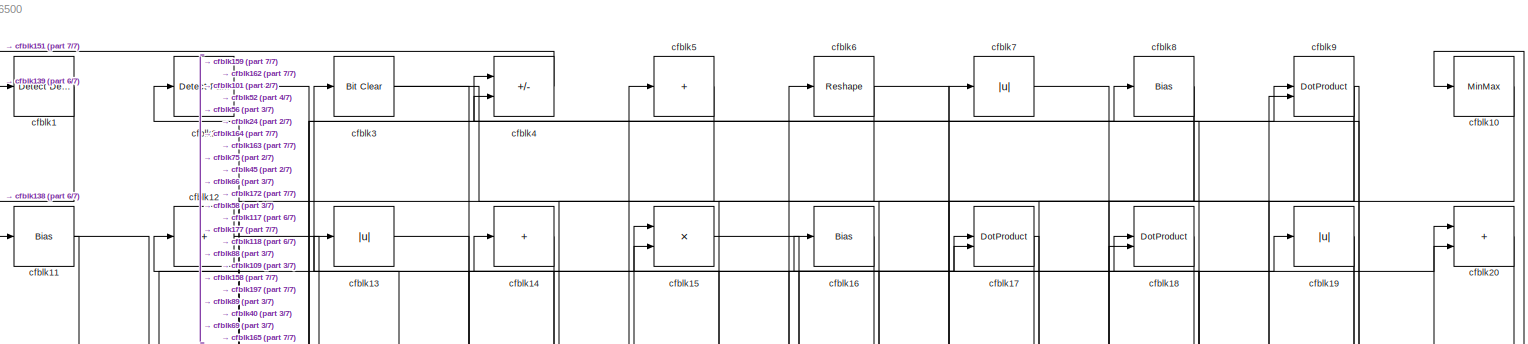
[diagram: root canvas - part 1/7, full width, top band]
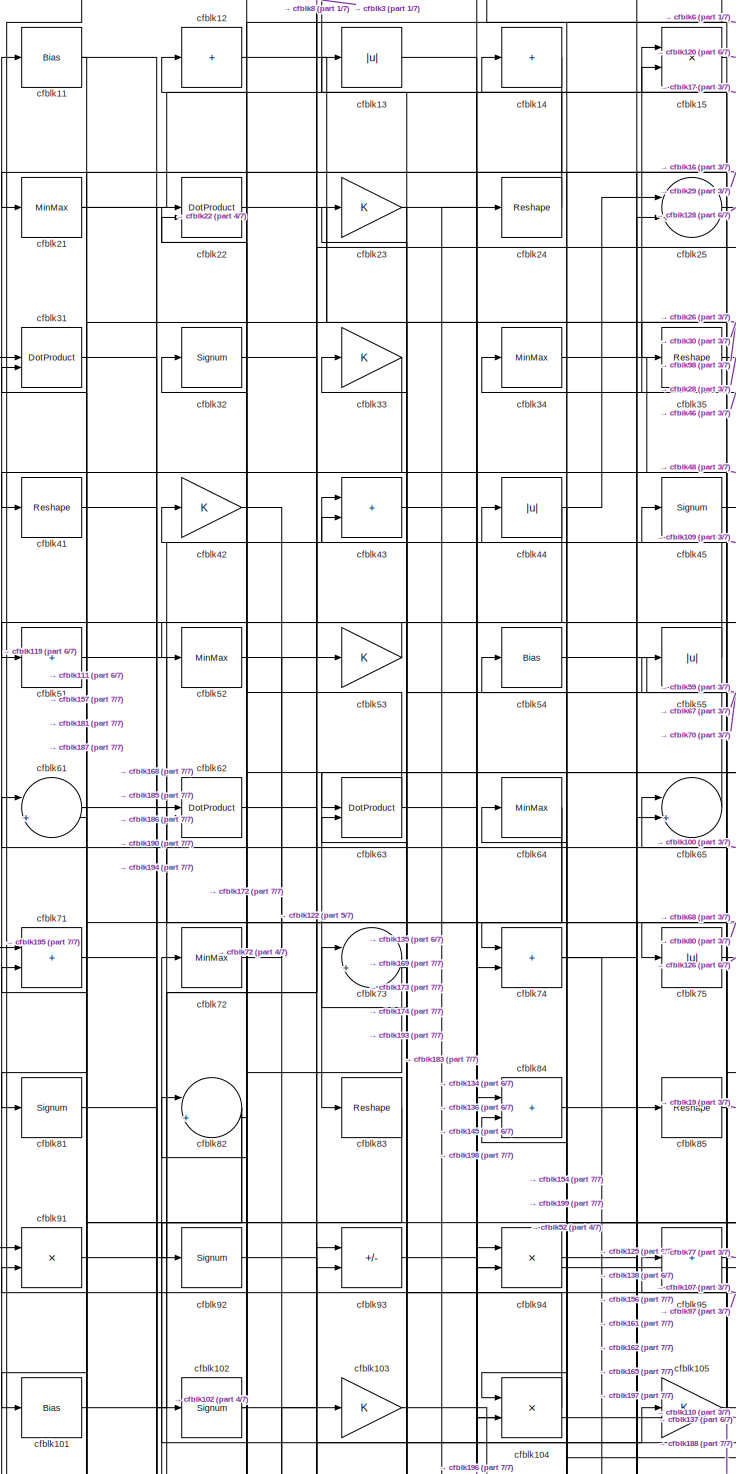
[diagram: root canvas - part 2/7, top left region]
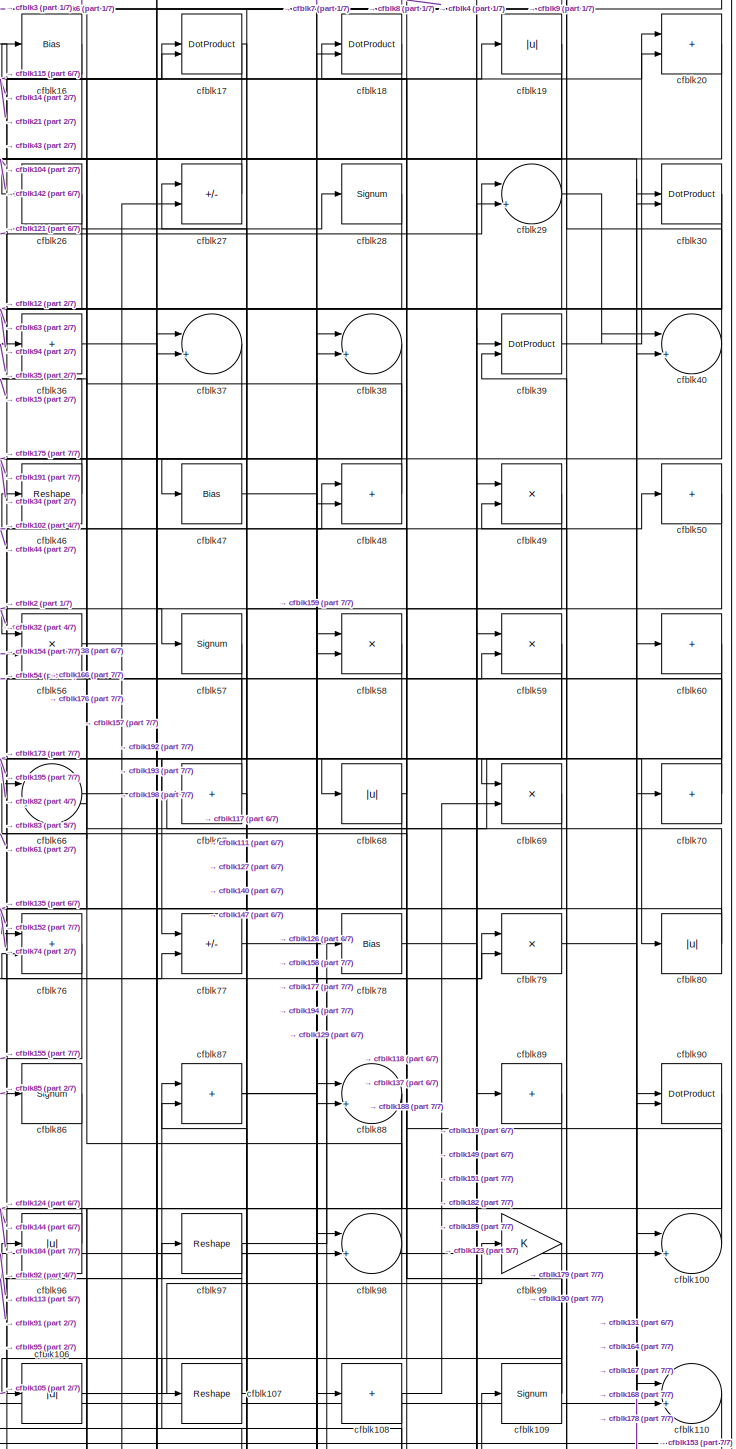
[diagram: root canvas - part 3/7, top right region]
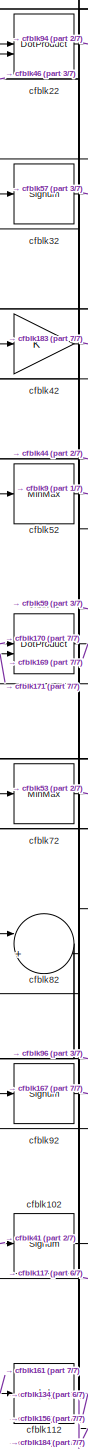
[diagram: root canvas - part 4/7, middle left region]
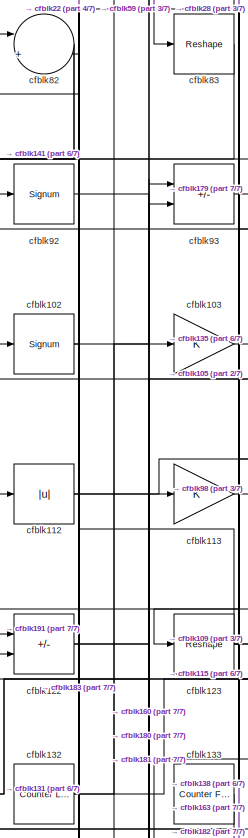
[diagram: root canvas - part 5/7, middle left region]
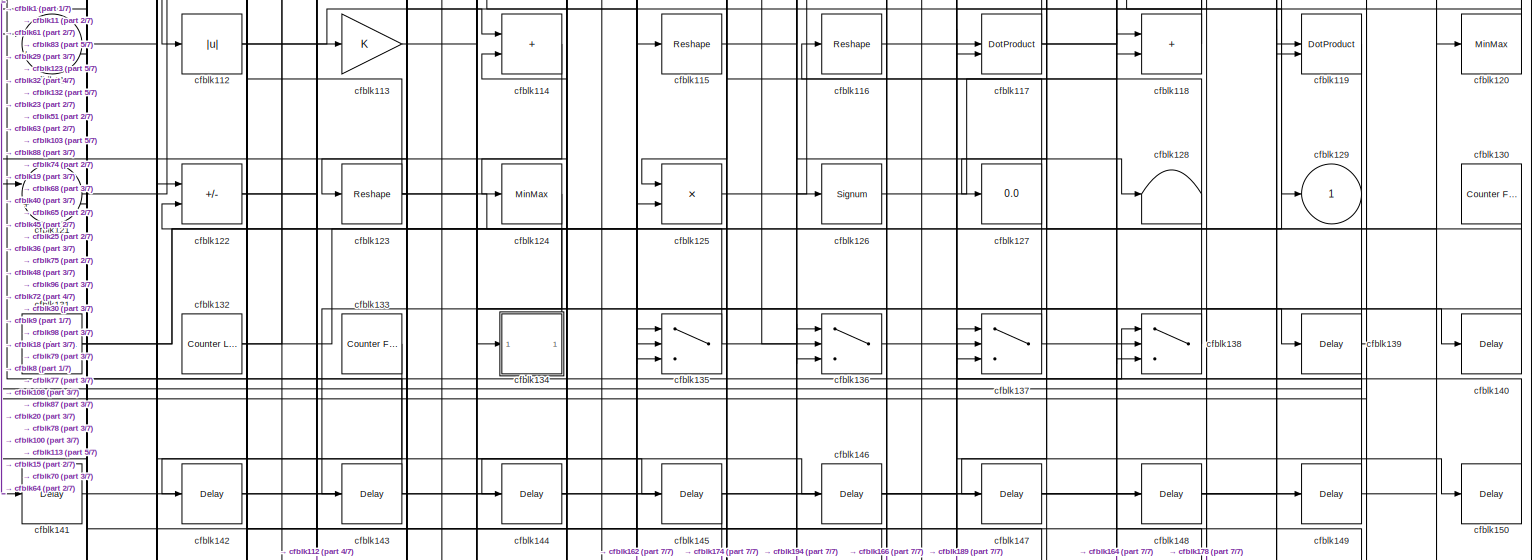
[diagram: root canvas - part 6/7, full width, middle band]
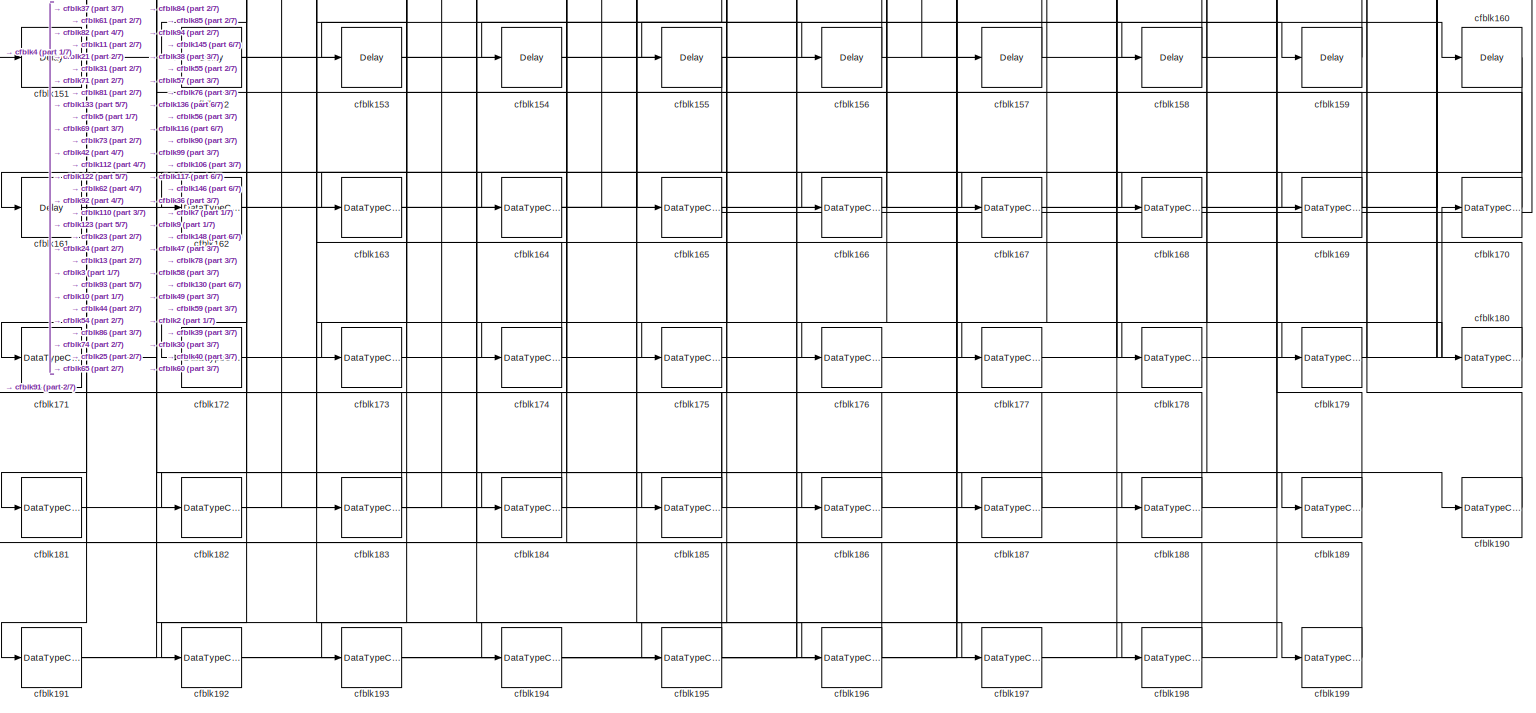
[diagram: root canvas - part 7/7, full width, bottom band]
MODEL slx_99d81be76500
KIND model
CONFIG AbsTol = auto
CONFIG EnableMultiTasking = off
CONFIG FixedStep = auto
CONFIG MaxStep = auto
CONFIG MinStep = auto
CONFIG RelTol = 1e-3
CONFIG SampleTimeConstraint = Unconstrained
CONFIG SolverName = VariableStepAuto
CONFIG StartTime = 0.0
CONFIG StopTime = 10.0
BLOCK [Reference] cfblk1  REF=simulink/Logic and Bit
Operations/Detect
Decrease
  LibrarySourceBlock = hdlsllib/Logic and Bit\nOperations/Detect\nDecrease
  SourceBlock = simulink/Logic and Bit\nOperations/Detect\nDecrease
  SourceType = Detect Decrease
BLOCK [MinMax] cfblk10
BLOCK [Sum] cfblk100
  Inputs = |++
BLOCK [Bias] cfblk101
  Bias = 0.0
  SaturateOnIntegerOverflow = off
BLOCK [Signum] cfblk102
BLOCK [Gain] cfblk103
BLOCK [Product] cfblk104
  Inputs = */
  RndMeth = Zero
  SaturateOnIntegerOverflow = on
BLOCK [Gain] cfblk105
BLOCK [Abs] cfblk106
  SaturateOnIntegerOverflow = off
BLOCK [Reshape] cfblk107
BLOCK [Sum] cfblk108
  IconShape = rectangular
  Inputs = +
BLOCK [Signum] cfblk109
BLOCK [Bias] cfblk11
  Bias = 0.0
  SaturateOnIntegerOverflow = off
BLOCK [Sum] cfblk110
  Inputs = |++
BLOCK [Sum] cfblk111
  Inputs = |++
BLOCK [Abs] cfblk112
  SaturateOnIntegerOverflow = off
BLOCK [Gain] cfblk113
BLOCK [Sum] cfblk114
  IconShape = rectangular
BLOCK [Reshape] cfblk115
BLOCK [Reshape] cfblk116
BLOCK [DotProduct] cfblk117
  OutDataTypeStr = Inherit: Inherit via internal rule
BLOCK [Sum] cfblk118
  IconShape = rectangular
BLOCK [DotProduct] cfblk119
  OutDataTypeStr = Inherit: Inherit via internal rule
BLOCK [Sum] cfblk12
  IconShape = rectangular
  Inputs = +
BLOCK [MinMax] cfblk120
BLOCK [Sum] cfblk121
  Inputs = |++
BLOCK [Sum] cfblk122
  IconShape = rectangular
  Inputs = +-
BLOCK [Reshape] cfblk123
BLOCK [MinMax] cfblk124
BLOCK [Product] cfblk125
  Inputs = */
  RndMeth = Zero
  SaturateOnIntegerOverflow = on
BLOCK [Signum] cfblk126
BLOCK [Display] cfblk127
  Decimation = 1
BLOCK [Terminator] cfblk128
BLOCK [Outport] cfblk129
  VectorParamsAs1DForOutWhenUnconnected = off
BLOCK [Abs] cfblk13
  SaturateOnIntegerOverflow = off
BLOCK [Reference] cfblk130  REF=hdlsllib/Sources/Counter
Free-Running
  SourceBlock = hdlsllib/Sources/Counter\nFree-Running
  SourceType = Counter Free-Running
BLOCK [Reference] cfblk131  REF=hdlsllib/Sources/Counter
Limited
  SourceBlock = hdlsllib/Sources/Counter\nLimited
  SourceType = Counter Limited
BLOCK [Reference] cfblk132  REF=hdlsllib/Sources/Counter
Limited
  SourceBlock = hdlsllib/Sources/Counter\nLimited
  SourceType = Counter Limited
BLOCK [Reference] cfblk133  REF=hdlsllib/Sources/Counter
Free-Running
  SourceBlock = hdlsllib/Sources/Counter\nFree-Running
  SourceType = Counter Free-Running
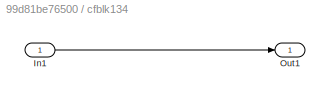
BLOCK [SubSystem] cfblk134
  LibrarySourceBlock = hdlsllib/Ports &\nSubsystems/Subsystem
BLOCK [Inport] cfblk134/In1
BLOCK [Outport] cfblk134/Out1
BLOCK [Switch] cfblk135
  InputSameDT = off
  SaturateOnIntegerOverflow = off
BLOCK [Switch] cfblk136
  InputSameDT = off
  SaturateOnIntegerOverflow = off
BLOCK [Switch] cfblk137
  InputSameDT = off
  SaturateOnIntegerOverflow = off
BLOCK [Switch] cfblk138
  InputSameDT = off
  SaturateOnIntegerOverflow = off
BLOCK [Delay] cfblk139
  InputPortMap = u0
  SampleTime = 1
BLOCK [Sum] cfblk14
  IconShape = rectangular
  Inputs = +
BLOCK [Delay] cfblk140
  InputPortMap = u0
  SampleTime = 1
BLOCK [Delay] cfblk141
  InputPortMap = u0
  SampleTime = 1
BLOCK [Delay] cfblk142
  InputPortMap = u0
  SampleTime = 1
BLOCK [Delay] cfblk143
  InputPortMap = u0
  SampleTime = 1
BLOCK [Delay] cfblk144
  InputPortMap = u0
  SampleTime = 1
BLOCK [Delay] cfblk145
  InputPortMap = u0
  SampleTime = 1
BLOCK [Delay] cfblk146
  InputPortMap = u0
  SampleTime = 1
BLOCK [Delay] cfblk147
  InputPortMap = u0
  SampleTime = 1
BLOCK [Delay] cfblk148
  InputPortMap = u0
  SampleTime = 1
BLOCK [Delay] cfblk149
  InputPortMap = u0
  SampleTime = 1
BLOCK [Product] cfblk15
  Inputs = */
  RndMeth = Zero
  SaturateOnIntegerOverflow = on
BLOCK [Delay] cfblk150
  InputPortMap = u0
  SampleTime = 1
BLOCK [Delay] cfblk151
  InputPortMap = u0
  SampleTime = 1
BLOCK [Delay] cfblk152
  InputPortMap = u0
  SampleTime = 1
BLOCK [Delay] cfblk153
  InputPortMap = u0
  SampleTime = 1
BLOCK [Delay] cfblk154
  InputPortMap = u0
  SampleTime = 1
BLOCK [Delay] cfblk155
  InputPortMap = u0
  SampleTime = 1
BLOCK [Delay] cfblk156
  InputPortMap = u0
  SampleTime = 1
BLOCK [Delay] cfblk157
  InputPortMap = u0
  SampleTime = 1
BLOCK [Delay] cfblk158
  InputPortMap = u0
  SampleTime = 1
BLOCK [Delay] cfblk159
  InputPortMap = u0
  SampleTime = 1
BLOCK [Bias] cfblk16
  Bias = 0.0
  SaturateOnIntegerOverflow = off
BLOCK [Delay] cfblk160
  InputPortMap = u0
  SampleTime = 1
BLOCK [Delay] cfblk161
  InputPortMap = u0
  SampleTime = 1
BLOCK [DataTypeConversion] cfblk162
  RndMeth = Floor
  SaturateOnIntegerOverflow = off
BLOCK [DataTypeConversion] cfblk163
  OutDataTypeStr = uint8
  RndMeth = Floor
  SaturateOnIntegerOverflow = off
BLOCK [DataTypeConversion] cfblk164
  RndMeth = Floor
  SaturateOnIntegerOverflow = off
BLOCK [DataTypeConversion] cfblk165
  OutDataTypeStr = uint8
  RndMeth = Floor
  SaturateOnIntegerOverflow = off
BLOCK [DataTypeConversion] cfblk166
  OutDataTypeStr = uint8
  RndMeth = Floor
  SaturateOnIntegerOverflow = off
BLOCK [DataTypeConversion] cfblk167
  OutDataTypeStr = uint8
  RndMeth = Floor
  SaturateOnIntegerOverflow = off
BLOCK [DataTypeConversion] cfblk168
  OutDataTypeStr = uint8
  RndMeth = Floor
  SaturateOnIntegerOverflow = off
BLOCK [DataTypeConversion] cfblk169
  OutDataTypeStr = uint8
  RndMeth = Floor
  SaturateOnIntegerOverflow = off
BLOCK [DotProduct] cfblk17
  OutDataTypeStr = Inherit: Inherit via internal rule
BLOCK [DataTypeConversion] cfblk170
  OutDataTypeStr = uint8
  RndMeth = Floor
  SaturateOnIntegerOverflow = off
BLOCK [DataTypeConversion] cfblk171
  OutDataTypeStr = uint8
  RndMeth = Floor
  SaturateOnIntegerOverflow = off
BLOCK [DataTypeConversion] cfblk172
  RndMeth = Floor
  SaturateOnIntegerOverflow = off
BLOCK [DataTypeConversion] cfblk173
  OutDataTypeStr = uint8
  RndMeth = Floor
  SaturateOnIntegerOverflow = off
BLOCK [DataTypeConversion] cfblk174
  OutDataTypeStr = uint8
  RndMeth = Floor
  SaturateOnIntegerOverflow = off
BLOCK [DataTypeConversion] cfblk175
  OutDataTypeStr = uint8
  RndMeth = Floor
  SaturateOnIntegerOverflow = off
BLOCK [DataTypeConversion] cfblk176
  OutDataTypeStr = uint8
  RndMeth = Floor
  SaturateOnIntegerOverflow = off
BLOCK [DataTypeConversion] cfblk177
  OutDataTypeStr = uint8
  RndMeth = Floor
  SaturateOnIntegerOverflow = off
BLOCK [DataTypeConversion] cfblk178
  RndMeth = Floor
  SaturateOnIntegerOverflow = off
BLOCK [DataTypeConversion] cfblk179
  OutDataTypeStr = uint8
  RndMeth = Floor
  SaturateOnIntegerOverflow = off
BLOCK [DotProduct] cfblk18
  OutDataTypeStr = Inherit: Inherit via internal rule
BLOCK [DataTypeConversion] cfblk180
  OutDataTypeStr = uint8
  RndMeth = Floor
  SaturateOnIntegerOverflow = off
BLOCK [DataTypeConversion] cfblk181
  OutDataTypeStr = uint8
  RndMeth = Floor
  SaturateOnIntegerOverflow = off
BLOCK [DataTypeConversion] cfblk182
  OutDataTypeStr = uint8
  RndMeth = Floor
  SaturateOnIntegerOverflow = off
BLOCK [DataTypeConversion] cfblk183
  RndMeth = Floor
  SaturateOnIntegerOverflow = off
BLOCK [DataTypeConversion] cfblk184
  OutDataTypeStr = uint8
  RndMeth = Floor
  SaturateOnIntegerOverflow = off
BLOCK [DataTypeConversion] cfblk185
  RndMeth = Floor
  SaturateOnIntegerOverflow = off
BLOCK [DataTypeConversion] cfblk186
  OutDataTypeStr = uint8
  RndMeth = Floor
  SaturateOnIntegerOverflow = off
BLOCK [DataTypeConversion] cfblk187
  OutDataTypeStr = uint8
  RndMeth = Floor
  SaturateOnIntegerOverflow = off
BLOCK [DataTypeConversion] cfblk188
  OutDataTypeStr = uint8
  RndMeth = Floor
  SaturateOnIntegerOverflow = off
BLOCK [DataTypeConversion] cfblk189
  OutDataTypeStr = uint8
  RndMeth = Floor
  SaturateOnIntegerOverflow = off
BLOCK [Abs] cfblk19
  SaturateOnIntegerOverflow = off
BLOCK [DataTypeConversion] cfblk190
  OutDataTypeStr = uint8
  RndMeth = Floor
  SaturateOnIntegerOverflow = off
BLOCK [DataTypeConversion] cfblk191
  RndMeth = Floor
  SaturateOnIntegerOverflow = off
BLOCK [DataTypeConversion] cfblk192
  OutDataTypeStr = uint8
  RndMeth = Floor
  SaturateOnIntegerOverflow = off
BLOCK [DataTypeConversion] cfblk193
  OutDataTypeStr = uint8
  RndMeth = Floor
  SaturateOnIntegerOverflow = off
BLOCK [DataTypeConversion] cfblk194
  RndMeth = Floor
  SaturateOnIntegerOverflow = off
BLOCK [DataTypeConversion] cfblk195
  OutDataTypeStr = uint8
  RndMeth = Floor
  SaturateOnIntegerOverflow = off
BLOCK [DataTypeConversion] cfblk196
  OutDataTypeStr = uint8
  RndMeth = Floor
  SaturateOnIntegerOverflow = off
BLOCK [DataTypeConversion] cfblk197
  OutDataTypeStr = uint8
  RndMeth = Floor
  SaturateOnIntegerOverflow = off
BLOCK [DataTypeConversion] cfblk198
  OutDataTypeStr = uint8
  RndMeth = Floor
  SaturateOnIntegerOverflow = off
BLOCK [DataTypeConversion] cfblk199
  OutDataTypeStr = uint8
  RndMeth = Floor
  SaturateOnIntegerOverflow = off
BLOCK [Reference] cfblk2  REF=hdlsllib/Logic and Bit
Operations/Detect Fall
Negative
  SourceBlock = hdlsllib/Logic and Bit\nOperations/Detect Fall\nNegative
  SourceType = Detect Fall Negative
BLOCK [Sum] cfblk20
  IconShape = rectangular
BLOCK [MinMax] cfblk21
BLOCK [DotProduct] cfblk22
  OutDataTypeStr = Inherit: Inherit via internal rule
BLOCK [Gain] cfblk23
BLOCK [Reshape] cfblk24
BLOCK [Sum] cfblk25
  Inputs = |++
BLOCK [Sum] cfblk26
  IconShape = rectangular
  Inputs = +
BLOCK [Sum] cfblk27
  IconShape = rectangular
  Inputs = +-
BLOCK [Signum] cfblk28
BLOCK [Sum] cfblk29
  Inputs = |++
BLOCK [Reference] cfblk3  REF=simulink/Logic and Bit
Operations/Bit Clear
  LibrarySourceBlock = hdlsllib/Logic and Bit\nOperations/Bit Clear
  SourceBlock = simulink/Logic and Bit\nOperations/Bit Clear
  SourceType = Bit Clear
BLOCK [DotProduct] cfblk30
  OutDataTypeStr = Inherit: Inherit via internal rule
BLOCK [DotProduct] cfblk31
  OutDataTypeStr = Inherit: Inherit via internal rule
BLOCK [Signum] cfblk32
BLOCK [Gain] cfblk33
BLOCK [MinMax] cfblk34
BLOCK [Reshape] cfblk35
BLOCK [Sum] cfblk36
  IconShape = rectangular
  Inputs = +
BLOCK [Sum] cfblk37
  Inputs = |++
BLOCK [Sum] cfblk38
  Inputs = |++
BLOCK [DotProduct] cfblk39
  OutDataTypeStr = Inherit: Inherit via internal rule
BLOCK [Sum] cfblk4
  IconShape = rectangular
  Inputs = +-
BLOCK [Sum] cfblk40
  Inputs = |++
BLOCK [Reshape] cfblk41
BLOCK [Gain] cfblk42
BLOCK [Sum] cfblk43
  IconShape = rectangular
BLOCK [Abs] cfblk44
  SaturateOnIntegerOverflow = off
BLOCK [Signum] cfblk45
BLOCK [Reshape] cfblk46
BLOCK [Bias] cfblk47
  Bias = 0.0
  SaturateOnIntegerOverflow = off
BLOCK [Sum] cfblk48
  IconShape = rectangular
BLOCK [Product] cfblk49
  Inputs = */
  RndMeth = Zero
  SaturateOnIntegerOverflow = on
BLOCK [Sum] cfblk5
  IconShape = rectangular
  Inputs = +
BLOCK [Sum] cfblk50
  IconShape = rectangular
  Inputs = +
BLOCK [Sum] cfblk51
  IconShape = rectangular
  Inputs = +
BLOCK [MinMax] cfblk52
BLOCK [Gain] cfblk53
BLOCK [Bias] cfblk54
  Bias = 0.0
  SaturateOnIntegerOverflow = off
BLOCK [Abs] cfblk55
  SaturateOnIntegerOverflow = off
BLOCK [Product] cfblk56
  Inputs = */
  RndMeth = Zero
  SaturateOnIntegerOverflow = on
BLOCK [Signum] cfblk57
BLOCK [Product] cfblk58
  Inputs = */
  RndMeth = Zero
  SaturateOnIntegerOverflow = on
BLOCK [Product] cfblk59
  Inputs = */
  RndMeth = Zero
  SaturateOnIntegerOverflow = on
BLOCK [Reshape] cfblk6
BLOCK [Sum] cfblk60
  IconShape = rectangular
  Inputs = +
BLOCK [Sum] cfblk61
  Inputs = |++
BLOCK [DotProduct] cfblk62
  OutDataTypeStr = Inherit: Inherit via internal rule
BLOCK [DotProduct] cfblk63
  OutDataTypeStr = Inherit: Inherit via internal rule
BLOCK [MinMax] cfblk64
BLOCK [Sum] cfblk65
  Inputs = |++
BLOCK [Sum] cfblk66
  Inputs = |++
BLOCK [Sum] cfblk67
  IconShape = rectangular
  Inputs = +
BLOCK [Abs] cfblk68
  SaturateOnIntegerOverflow = off
BLOCK [Product] cfblk69
  Inputs = */
  RndMeth = Zero
  SaturateOnIntegerOverflow = on
BLOCK [Abs] cfblk7
  SaturateOnIntegerOverflow = off
BLOCK [Sum] cfblk70
  IconShape = rectangular
  Inputs = +
BLOCK [Sum] cfblk71
  IconShape = rectangular
BLOCK [MinMax] cfblk72
BLOCK [Sum] cfblk73
  Inputs = |++
BLOCK [Sum] cfblk74
  IconShape = rectangular
BLOCK [Abs] cfblk75
  SaturateOnIntegerOverflow = off
BLOCK [Sum] cfblk76
  IconShape = rectangular
BLOCK [Sum] cfblk77
  IconShape = rectangular
  Inputs = +-
BLOCK [Bias] cfblk78
  Bias = 0.0
  SaturateOnIntegerOverflow = off
BLOCK [Product] cfblk79
  Inputs = */
  RndMeth = Zero
  SaturateOnIntegerOverflow = on
BLOCK [Bias] cfblk8
  Bias = 0.0
  SaturateOnIntegerOverflow = off
BLOCK [Abs] cfblk80
  SaturateOnIntegerOverflow = off
BLOCK [Signum] cfblk81
BLOCK [Sum] cfblk82
  Inputs = |++
BLOCK [Reshape] cfblk83
BLOCK [Sum] cfblk84
  IconShape = rectangular
BLOCK [Reshape] cfblk85
BLOCK [Signum] cfblk86
BLOCK [Sum] cfblk87
  IconShape = rectangular
BLOCK [Sum] cfblk88
  Inputs = |++
BLOCK [Sum] cfblk89
  IconShape = rectangular
  Inputs = +
BLOCK [DotProduct] cfblk9
  OutDataTypeStr = Inherit: Inherit via internal rule
BLOCK [DotProduct] cfblk90
  OutDataTypeStr = Inherit: Inherit via internal rule
BLOCK [Product] cfblk91
  Inputs = */
  RndMeth = Zero
  SaturateOnIntegerOverflow = on
BLOCK [Signum] cfblk92
BLOCK [Sum] cfblk93
  IconShape = rectangular
  Inputs = +-
BLOCK [Product] cfblk94
  Inputs = */
  RndMeth = Zero
  SaturateOnIntegerOverflow = on
BLOCK [Sum] cfblk95
  IconShape = rectangular
  Inputs = +
BLOCK [Abs] cfblk96
  SaturateOnIntegerOverflow = off
BLOCK [Reshape] cfblk97
BLOCK [Sum] cfblk98
  Inputs = |++
BLOCK [Gain] cfblk99
LINE cfblk100:1 -> cfblk61:1
LINE cfblk101:1 -> cfblk8:1
NET cfblk102:1 -> cfblk22:2, cfblk46:1
LINE cfblk103:1 -> cfblk135:1
LINE cfblk104:1 -> cfblk13:1
LINE cfblk105:1 -> cfblk97:1
NET cfblk106:1 -> cfblk157:1, cfblk27:2, cfblk99:1
NET cfblk107:1 -> cfblk27:1, cfblk95:1
NET cfblk108:1 -> cfblk137:3, cfblk69:2
NET cfblk109:1 -> cfblk44:1, cfblk4:2, cfblk76:2
LINE cfblk10:1 -> cfblk164:1
LINE cfblk110:1 -> cfblk153:1
LINE cfblk111:1 -> cfblk146:1
NET cfblk112:1 -> cfblk114:1, cfblk199:1
LINE cfblk113:1 -> cfblk98:2
LINE cfblk114:1 -> cfblk121:1
LINE cfblk115:1 -> cfblk20:2
LINE cfblk116:1 -> cfblk139:1
NET cfblk117:1 -> cfblk72:1, cfblk79:2, cfblk88:2
LINE cfblk118:1 -> cfblk87:1
LINE cfblk119:1 -> cfblk11:1
NET cfblk11:1 -> cfblk101:1, cfblk168:1
LINE cfblk120:1 -> cfblk64:1
LINE cfblk121:1 -> cfblk29:1
NET cfblk122:1 -> cfblk105:1, cfblk160:1
NET cfblk123:1 -> cfblk109:1, cfblk138:3, cfblk163:1, cfblk22:1
LINE cfblk124:1 -> cfblk143:1
LINE cfblk125:1 -> cfblk48:1
LINE cfblk126:1 -> cfblk18:2
LINE cfblk12:1 -> cfblk98:1
LINE cfblk130:1 -> cfblk178:1
NET cfblk131:1 -> cfblk113:1, cfblk70:1
NET cfblk132:1 -> cfblk103:1, cfblk115:1
LINE cfblk133:1 -> cfblk182:1
LINE cfblk134/In1:1 -> cfblk134/Out1:1
LINE cfblk134:1 -> cfblk32:1
NET cfblk135:1 -> cfblk36:1, cfblk63:2
LINE cfblk136:1 -> cfblk150:1
NET cfblk137:1 -> cfblk140:1, cfblk65:1
LINE cfblk138:1 -> cfblk96:1
LINE cfblk139:1 -> cfblk1:1
LINE cfblk13:1 -> cfblk196:1
LINE cfblk140:1 -> cfblk87:2
LINE cfblk141:1 -> cfblk118:1
LINE cfblk142:1 -> cfblk29:2
LINE cfblk143:1 -> cfblk121:2
LINE cfblk144:1 -> cfblk114:2
LINE cfblk145:1 -> cfblk174:1
LINE cfblk146:1 -> cfblk189:1
LINE cfblk147:1 -> cfblk100:1
LINE cfblk148:1 -> cfblk119:1
LINE cfblk149:1 -> cfblk137:2
LINE cfblk14:1 -> cfblk41:1
LINE cfblk150:1 -> cfblk137:1
LINE cfblk151:1 -> cfblk59:1
LINE cfblk152:1 -> cfblk180:1
LINE cfblk153:1 -> cfblk187:1
LINE cfblk154:1 -> cfblk56:2
LINE cfblk155:1 -> cfblk192:1
LINE cfblk156:1 -> cfblk82:1
LINE cfblk157:1 -> cfblk61:2
LINE cfblk158:1 -> cfblk58:1
LINE cfblk159:1 -> cfblk2:1
LINE cfblk15:1 -> cfblk120:1
LINE cfblk160:1 -> cfblk171:1
LINE cfblk161:1 -> cfblk65:2
NET cfblk162:1 -> cfblk117:1, cfblk85:1
LINE cfblk163:1 -> cfblk5:1
NET cfblk164:1 -> cfblk148:1, cfblk40:2
LINE cfblk165:1 -> cfblk10:1
LINE cfblk166:1 -> cfblk116:1
LINE cfblk167:1 -> cfblk90:1
LINE cfblk168:1 -> cfblk90:2
LINE cfblk169:1 -> cfblk23:1
LINE cfblk16:1 -> cfblk104:1
LINE cfblk170:1 -> cfblk62:1
LINE cfblk171:1 -> cfblk62:2
NET cfblk172:1 -> cfblk170:1, cfblk7:1
LINE cfblk173:1 -> cfblk73:1
LINE cfblk174:1 -> cfblk73:2
LINE cfblk175:1 -> cfblk30:2
LINE cfblk176:1 -> cfblk38:1
LINE cfblk177:1 -> cfblk38:2
NET cfblk178:1 -> cfblk30:1, cfblk60:1
LINE cfblk179:1 -> cfblk39:2
NET cfblk17:1 -> cfblk47:1, cfblk76:1
LINE cfblk180:1 -> cfblk93:1
LINE cfblk181:1 -> cfblk93:2
LINE cfblk182:1 -> cfblk39:1
NET cfblk183:1 -> cfblk122:2, cfblk24:1, cfblk25:2
LINE cfblk184:1 -> cfblk42:1
NET cfblk185:1 -> cfblk54:1, cfblk91:1
LINE cfblk186:1 -> cfblk31:1
LINE cfblk187:1 -> cfblk31:2
LINE cfblk188:1 -> cfblk55:1
LINE cfblk189:1 -> cfblk49:1
LINE cfblk18:1 -> cfblk142:1
LINE cfblk190:1 -> cfblk49:2
NET cfblk191:1 -> cfblk122:1, cfblk86:1
LINE cfblk192:1 -> cfblk37:1
LINE cfblk193:1 -> cfblk37:2
NET cfblk194:1 -> cfblk136:1, cfblk78:1
LINE cfblk195:1 -> cfblk71:1
LINE cfblk196:1 -> cfblk71:2
LINE cfblk197:1 -> cfblk9:2
LINE cfblk198:1 -> cfblk84:1
LINE cfblk199:1 -> cfblk84:2
NET cfblk19:1 -> cfblk135:3, cfblk74:2
LINE cfblk1:1 -> cfblk138:1
LINE cfblk20:1 -> cfblk119:2
NET cfblk21:1 -> cfblk17:2, cfblk190:1
LINE cfblk22:1 -> cfblk94:1
NET cfblk23:1 -> cfblk145:1, cfblk193:1
LINE cfblk24:1 -> cfblk3:1
LINE cfblk25:1 -> cfblk128:1
LINE cfblk26:1 -> cfblk35:1
LINE cfblk27:1 -> cfblk26:1
LINE cfblk28:1 -> cfblk123:1
NET cfblk29:1 -> cfblk21:1, cfblk40:1, cfblk94:2
LINE cfblk2:1 -> cfblk56:1
NET cfblk30:1 -> cfblk111:2, cfblk127:1, cfblk63:1
LINE cfblk31:1 -> cfblk185:1
LINE cfblk32:1 -> cfblk57:1
LINE cfblk33:1 -> cfblk81:1
LINE cfblk34:1 -> cfblk48:2
LINE cfblk35:1 -> cfblk28:1
LINE cfblk36:1 -> cfblk198:1
LINE cfblk37:1 -> cfblk191:1
LINE cfblk38:1 -> cfblk175:1
LINE cfblk39:1 -> cfblk20:1
NET cfblk3:1 -> cfblk158:1, cfblk89:1
NET cfblk40:1 -> cfblk125:1, cfblk4:1
LINE cfblk41:1 -> cfblk102:1
LINE cfblk42:1 -> cfblk183:1
NET cfblk43:1 -> cfblk110:2, cfblk17:1
NET cfblk44:1 -> cfblk154:1, cfblk25:1, cfblk52:1
NET cfblk45:1 -> cfblk136:2, cfblk6:1
LINE cfblk46:1 -> cfblk15:1
LINE cfblk47:1 -> cfblk159:1
LINE cfblk48:1 -> cfblk16:1
LINE cfblk49:1 -> cfblk188:1
LINE cfblk4:1 -> cfblk151:1
LINE cfblk50:1 -> cfblk67:1
LINE cfblk51:1 -> cfblk134:1
LINE cfblk52:1 -> cfblk9:1
LINE cfblk53:1 -> cfblk51:1
LINE cfblk54:1 -> cfblk59:2
LINE cfblk55:1 -> cfblk45:1
LINE cfblk56:1 -> cfblk100:2
LINE cfblk57:1 -> cfblk195:1
LINE cfblk58:1 -> cfblk173:1
NET cfblk59:1 -> cfblk82:2, cfblk83:1
LINE cfblk5:1 -> cfblk162:1
NET cfblk60:1 -> cfblk68:1, cfblk77:1
NET cfblk61:1 -> cfblk125:2, cfblk181:1
LINE cfblk62:1 -> cfblk169:1
NET cfblk63:1 -> cfblk12:1, cfblk136:3
NET cfblk64:1 -> cfblk104:2, cfblk111:1
LINE cfblk65:1 -> cfblk33:1
LINE cfblk66:1 -> cfblk80:1
NET cfblk67:1 -> cfblk107:1, cfblk43:2
NET cfblk68:1 -> cfblk135:2, cfblk14:1
LINE cfblk69:1 -> cfblk152:1
NET cfblk6:1 -> cfblk58:2, cfblk75:1
NET cfblk70:1 -> cfblk15:2, cfblk18:1
LINE cfblk71:1 -> cfblk194:1
LINE cfblk72:1 -> cfblk53:1
LINE cfblk73:1 -> cfblk172:1
NET cfblk74:1 -> cfblk138:2, cfblk165:1
LINE cfblk75:1 -> cfblk126:1
LINE cfblk76:1 -> cfblk155:1
LINE cfblk77:1 -> cfblk129:1
LINE cfblk78:1 -> cfblk149:1
LINE cfblk79:1 -> cfblk110:1
LINE cfblk7:1 -> cfblk88:1
NET cfblk80:1 -> cfblk34:1, cfblk74:1
LINE cfblk81:1 -> cfblk186:1
NET cfblk82:1 -> cfblk112:1, cfblk161:1
LINE cfblk83:1 -> cfblk141:1
LINE cfblk84:1 -> cfblk197:1
LINE cfblk85:1 -> cfblk19:1
LINE cfblk86:1 -> cfblk184:1
NET cfblk87:1 -> cfblk108:1, cfblk50:1
NET cfblk88:1 -> cfblk124:1, cfblk144:1
LINE cfblk89:1 -> cfblk106:1
NET cfblk8:1 -> cfblk118:2, cfblk66:2
LINE cfblk90:1 -> cfblk166:1
LINE cfblk91:1 -> cfblk43:1
LINE cfblk92:1 -> cfblk167:1
LINE cfblk93:1 -> cfblk179:1
LINE cfblk94:1 -> cfblk156:1
LINE cfblk95:1 -> cfblk77:2
LINE cfblk96:1 -> cfblk92:1
NET cfblk97:1 -> cfblk79:1, cfblk91:2
NET cfblk98:1 -> cfblk147:1, cfblk66:1
LINE cfblk99:1 -> cfblk176:1
NET cfblk9:1 -> cfblk117:2, cfblk177:1, cfblk69:1
note: NET lines group one-source signal fan-out (src -> all destinations, sorted); 1:1 wires keep LINE
